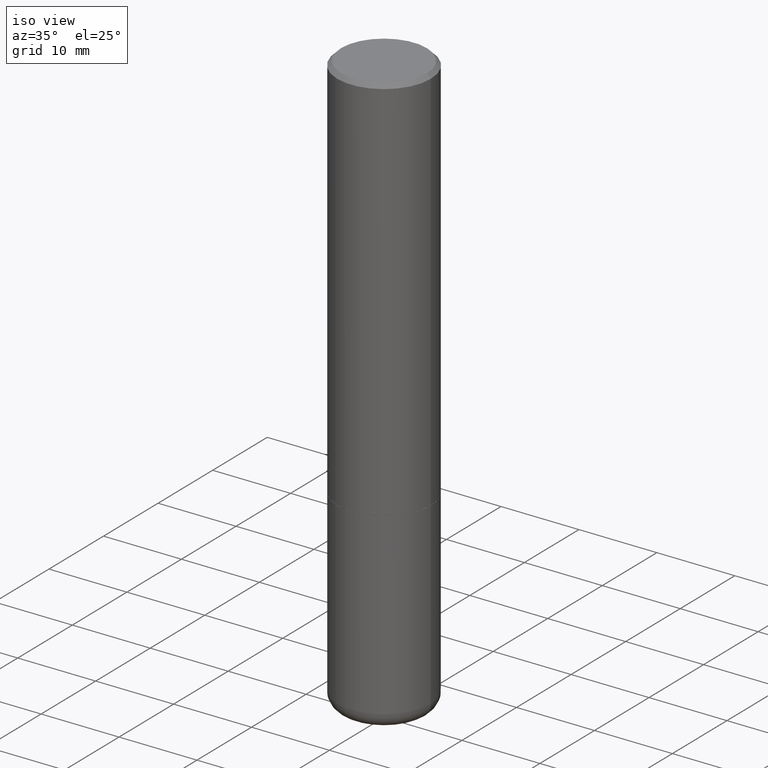
[diagram: clean part render]
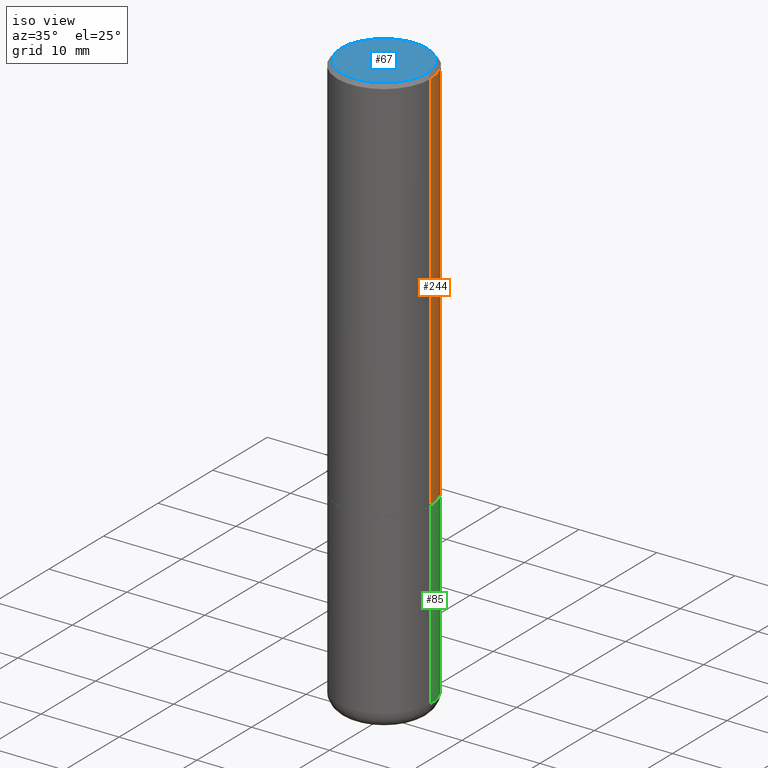
[diagram: same view with three faces highlighted in distinct colors, each labeled with its STEP entity id]
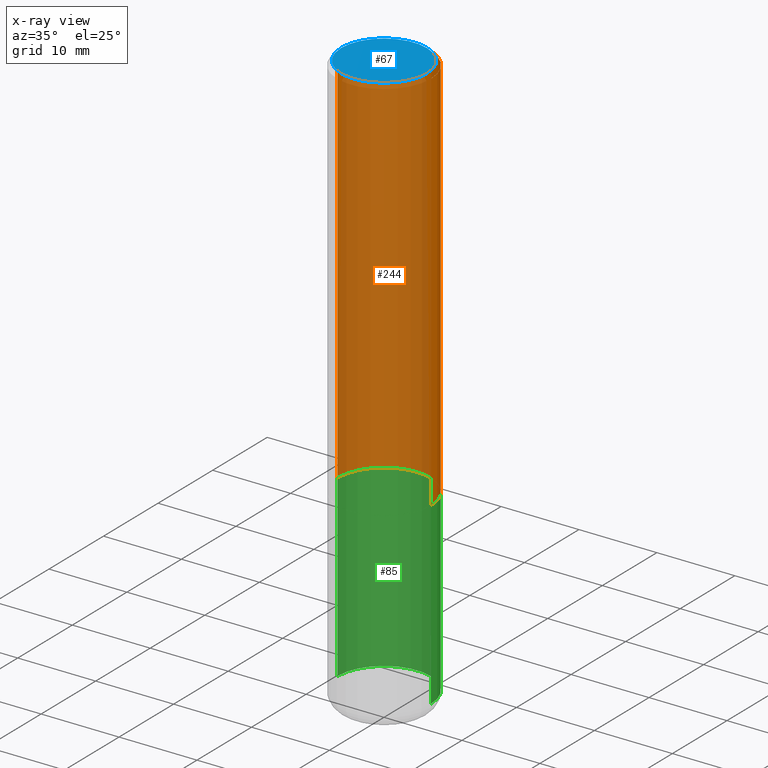
[diagram: x-ray of the same camera — body ghosted, the three highlighted faces saturated]
A machine part, iso view with three faces highlighted in distinct colors.
The next image is the same camera in x-ray (body ghosted, the three faces saturated) — at least one of them is partly hidden behind the body in this view.
Their STEP definitions:

[orange] entity #244 — the highlighted cylindrical surface (partial cylindrical patch) has radius 5.9995 mm, axis along (-0, 0, 1).
#12 = CARTESIAN_POINT ( 'NONE',  ( -0.2362000000000001321, 1.678301941865357577E-15, -1.161852468318209457E-29 ) ) ;
#17 = EDGE_CURVE ( 'NONE', #175, #137, #136, .T. ) ;
#27 = DIRECTION ( 'NONE',  ( -2.445468806185136877E-29, 3.491481338843145188E-15, 1.000000000000000000 ) ) ;
#35 = DIRECTION ( 'NONE',  ( -2.445468806185136597E-29, 3.491481338843145583E-15, 1.000000000000000000 ) ) ;
#45 = DIRECTION ( 'NONE',  ( -2.445468806185136877E-29, 3.491481338843145188E-15, 1.000000000000000000 ) ) ;
#57 = CIRCLE ( 'NONE', #280, 0.2361999999999999933 ) ;
#69 = DIRECTION ( 'NONE',  ( 1.000000000000000000, -6.982962677686265922E-15, 0.000000000000000000 ) ) ;
#79 = VECTOR ( 'NONE', #27, 39.37007874015748143 ) ;
#130 = ORIENTED_EDGE ( 'NONE', *, *, #279, .T. ) ;
#133 = CARTESIAN_POINT ( 'NONE',  ( 0.2361999999999999933, -1.690279253850498771E-15, -0.02000000000000005246 ) ) ;
#136 = CIRCLE ( 'NONE', #390, 0.2362000000000002431 ) ;
#137 = VERTEX_POINT ( 'NONE', #278 ) ;
#138 = CARTESIAN_POINT ( 'NONE',  ( 4.890937612370285420E-31, -6.982962677686308865E-17, -0.02000000000000005246 ) ) ;
#140 = CARTESIAN_POINT ( 'NONE',  ( -0.2361999999999999933, 1.579546157692633030E-15, -0.02000000000000005246 ) ) ;
#161 = EDGE_CURVE ( 'NONE', #175, #293, #185, .T. ) ;
#174 = LINE ( 'NONE', #12, #368 ) ;
#175 = VERTEX_POINT ( 'NONE', #234 ) ;
#185 = LINE ( 'NONE', #188, #79 ) ;
#186 = ORIENTED_EDGE ( 'NONE', *, *, #161, .F. ) ;
#188 = CARTESIAN_POINT ( 'NONE',  ( 0.2362000000000001321, -1.649375784469497117E-15, 1.151752954443000789E-29 ) ) ;
#193 = EDGE_CURVE ( 'NONE', #293, #281, #57, .T. ) ;
#211 = CARTESIAN_POINT ( 'NONE',  ( 4.811459876169255671E-29, -6.869489534173887122E-15, -1.967499999999999805 ) ) ;
#234 = CARTESIAN_POINT ( 'NONE',  ( 0.2362000000000002431, -8.518865318643385225E-15, -1.967499999999999805 ) ) ;
#244 = ADVANCED_FACE ( 'NONE', ( #369 ), #247, .T. ) ;
#247 = CYLINDRICAL_SURFACE ( 'NONE', #312, 0.2362000000000001321 ) ;
#278 = CARTESIAN_POINT ( 'NONE',  ( -0.2362000000000002431, -1.791357638610016055E-15, -1.967499999999999805 ) ) ;
#279 = EDGE_CURVE ( 'NONE', #137, #281, #174, .T. ) ;
#280 = AXIS2_PLACEMENT_3D ( 'NONE', #138, #328, #357 ) ;
#281 = VERTEX_POINT ( 'NONE', #140 ) ;
#293 = VERTEX_POINT ( 'NONE', #133 ) ;
#297 = CARTESIAN_POINT ( 'NONE',  ( 0.000000000000000000, 0.000000000000000000, 0.000000000000000000 ) ) ;
#312 = AXIS2_PLACEMENT_3D ( 'NONE', #297, #363, #331 ) ;
#328 = DIRECTION ( 'NONE',  ( -2.445468806185136597E-29, 3.491481338843145583E-15, 1.000000000000000000 ) ) ;
#331 = DIRECTION ( 'NONE',  ( 1.000000000000000000, -6.982962677686266711E-15, 4.876176775795936353E-29 ) ) ;
#335 = EDGE_LOOP ( 'NONE', ( #381, #130, #399, #186 ) ) ;
#357 = DIRECTION ( 'NONE',  ( 1.000000000000000000, -6.982962677686266711E-15, 0.000000000000000000 ) ) ;
#363 = DIRECTION ( 'NONE',  ( -2.445468806185136597E-29, 3.491481338843145583E-15, 1.000000000000000000 ) ) ;
#368 = VECTOR ( 'NONE', #45, 39.37007874015748143 ) ;
#369 = FACE_OUTER_BOUND ( 'NONE', #335, .T. ) ;
#381 = ORIENTED_EDGE ( 'NONE', *, *, #17, .T. ) ;
#390 = AXIS2_PLACEMENT_3D ( 'NONE', #211, #35, #69 ) ;
#399 = ORIENTED_EDGE ( 'NONE', *, *, #193, .F. ) ;

[blue] entity #67 — the highlighted planar face has unit normal (0, -0, -1).
#14 = CARTESIAN_POINT ( 'NONE',  ( 1.509716530915769140E-15, 0.2161999999999997535, -6.353399157350757782E-16 ) ) ;
#37 = FACE_OUTER_BOUND ( 'NONE', #378, .T. ) ;
#49 = DIRECTION ( 'NONE',  ( 1.000000000000000000, -6.982962677686267499E-15, 4.881916136609867620E-29 ) ) ;
#59 = EDGE_CURVE ( 'NONE', #342, #313, #189, .T. ) ;
#67 = ADVANCED_FACE ( 'NONE', ( #37 ), #171, .F. ) ;
#73 = DIRECTION ( 'NONE',  ( -1.000000000000000000, 6.982962677686265922E-15, -4.876176775795935793E-29 ) ) ;
#87 = CARTESIAN_POINT ( 'NONE',  ( -5.845567920277230523E-45, 8.345921754130504540E-31, 2.390366994456230070E-16 ) ) ;
#171 = PLANE ( 'NONE',  #256 ) ;
#189 = CIRCLE ( 'NONE', #360, 0.2161999999999997535 ) ;
#221 = DIRECTION ( 'NONE',  ( -2.445468806185136597E-29, 3.491481338843145583E-15, 1.000000000000000000 ) ) ;
#226 = EDGE_CURVE ( 'NONE', #313, #342, #291, .T. ) ;
#238 = DIRECTION ( 'NONE',  ( -2.445468806185136597E-29, 3.491481338843145583E-15, 1.000000000000000000 ) ) ;
#242 = ORIENTED_EDGE ( 'NONE', *, *, #226, .T. ) ;
#256 = AXIS2_PLACEMENT_3D ( 'NONE', #14, #402, #73 ) ;
#271 = CARTESIAN_POINT ( 'NONE',  ( -0.2161999999999997535, 1.544631344304201775E-15, 2.390366994456123573E-16 ) ) ;
#287 = AXIS2_PLACEMENT_3D ( 'NONE', #295, #238, #49 ) ;
#291 = CIRCLE ( 'NONE', #287, 0.2161999999999997535 ) ;
#295 = CARTESIAN_POINT ( 'NONE',  ( -5.845567920277230523E-45, 8.345921754130504540E-31, 2.390366994456230070E-16 ) ) ;
#313 = VERTEX_POINT ( 'NONE', #365 ) ;
#327 = DIRECTION ( 'NONE',  ( 1.000000000000000000, -6.982962677686267499E-15, 4.881916136609867620E-29 ) ) ;
#329 = ORIENTED_EDGE ( 'NONE', *, *, #59, .T. ) ;
#342 = VERTEX_POINT ( 'NONE', #271 ) ;
#360 = AXIS2_PLACEMENT_3D ( 'NONE', #87, #221, #327 ) ;
#365 = CARTESIAN_POINT ( 'NONE',  ( 0.2161999999999997535, -1.586759460484351002E-15, 2.390366994456338538E-16 ) ) ;
#378 = EDGE_LOOP ( 'NONE', ( #329, #242 ) ) ;
#402 = DIRECTION ( 'NONE',  ( 2.438088387897960049E-29, -3.491481338843145188E-15, -1.000000000000000000 ) ) ;

[green] entity #85 — the highlighted cylindrical surface (partial cylindrical patch) has radius 5.9995 mm, axis along (-0, 0, 1).
#5 = DIRECTION ( 'NONE',  ( -2.445468806185136597E-29, 3.491481338843145583E-15, 1.000000000000000000 ) ) ;
#6 = VECTOR ( 'NONE', #168, 39.37007874015748143 ) ;
#13 = AXIS2_PLACEMENT_3D ( 'NONE', #320, #5, #124 ) ;
#39 = EDGE_CURVE ( 'NONE', #372, #41, #316, .T. ) ;
#41 = VERTEX_POINT ( 'NONE', #246 ) ;
#42 = ORIENTED_EDGE ( 'NONE', *, *, #210, .T. ) ;
#44 = ORIENTED_EDGE ( 'NONE', *, *, #39, .F. ) ;
#52 = LINE ( 'NONE', #416, #366 ) ;
#71 = FACE_OUTER_BOUND ( 'NONE', #235, .T. ) ;
#77 = LINE ( 'NONE', #397, #6 ) ;
#82 = DIRECTION ( 'NONE',  ( -2.445468806185136877E-29, 3.491481338843145188E-15, 1.000000000000000000 ) ) ;
#85 = ADVANCED_FACE ( 'NONE', ( #71 ), #192, .T. ) ;
#114 = DIRECTION ( 'NONE',  ( 1.000000000000000000, -6.982962677686265133E-15, 0.000000000000000000 ) ) ;
#124 = DIRECTION ( 'NONE',  ( 1.000000000000000000, -6.982962677686266711E-15, 4.876176775795936353E-29 ) ) ;
#146 = AXIS2_PLACEMENT_3D ( 'NONE', #413, #179, #114 ) ;
#168 = DIRECTION ( 'NONE',  ( -2.445468806185136877E-29, 3.491481338843145188E-15, 1.000000000000000000 ) ) ;
#179 = DIRECTION ( 'NONE',  ( -2.445468806185136597E-29, 3.491481338843145583E-15, 1.000000000000000000 ) ) ;
#192 = CYLINDRICAL_SURFACE ( 'NONE', #13, 0.2361999999999999933 ) ;
#201 = ORIENTED_EDGE ( 'NONE', *, *, #385, .F. ) ;
#210 = EDGE_CURVE ( 'NONE', #417, #41, #77, .T. ) ;
#212 = CARTESIAN_POINT ( 'NONE',  ( 0.2361999999999999655, -1.168424230043858014E-14, -2.874099999999999877 ) ) ;
#213 = CARTESIAN_POINT ( 'NONE',  ( 0.2361999999999999933, -8.522356799982226655E-15, -1.968499999999999694 ) ) ;
#218 = ORIENTED_EDGE ( 'NONE', *, *, #408, .T. ) ;
#219 = CARTESIAN_POINT ( 'NONE',  ( 4.813905344975440714E-29, -6.872981015512730918E-15, -1.968499999999999694 ) ) ;
#223 = CIRCLE ( 'NONE', #146, 0.2361999999999999933 ) ;
#227 = DIRECTION ( 'NONE',  ( 1.000000000000000000, -6.982962677686265133E-15, 0.000000000000000000 ) ) ;
#235 = EDGE_LOOP ( 'NONE', ( #218, #42, #44, #201 ) ) ;
#246 = CARTESIAN_POINT ( 'NONE',  ( -0.2361999999999999933, -6.775621823875550476E-15, -1.968499999999999694 ) ) ;
#253 = DIRECTION ( 'NONE',  ( -2.445468806185136597E-29, 3.491481338843145583E-15, 1.000000000000000000 ) ) ;
#290 = AXIS2_PLACEMENT_3D ( 'NONE', #219, #253, #227 ) ;
#309 = VERTEX_POINT ( 'NONE', #212 ) ;
#316 = CIRCLE ( 'NONE', #290, 0.2361999999999999933 ) ;
#320 = CARTESIAN_POINT ( 'NONE',  ( 0.000000000000000000, 0.000000000000000000, 0.000000000000000000 ) ) ;
#350 = CARTESIAN_POINT ( 'NONE',  ( -0.2361999999999999655, -8.356564574103728795E-15, -2.874099999999999877 ) ) ;
#366 = VECTOR ( 'NONE', #82, 39.37007874015748143 ) ;
#372 = VERTEX_POINT ( 'NONE', #213 ) ;
#385 = EDGE_CURVE ( 'NONE', #309, #372, #52, .T. ) ;
#397 = CARTESIAN_POINT ( 'NONE',  ( -0.2361999999999999933, 1.678301941865356591E-15, -1.161852468318208757E-29 ) ) ;
#408 = EDGE_CURVE ( 'NONE', #309, #417, #223, .T. ) ;
#413 = CARTESIAN_POINT ( 'NONE',  ( 7.028521895856700897E-29, -1.003486651596908519E-14, -2.874099999999999877 ) ) ;
#416 = CARTESIAN_POINT ( 'NONE',  ( 0.2361999999999999933, -1.649375784469496131E-15, 1.151752954443000088E-29 ) ) ;
#417 = VERTEX_POINT ( 'NONE', #350 ) ;